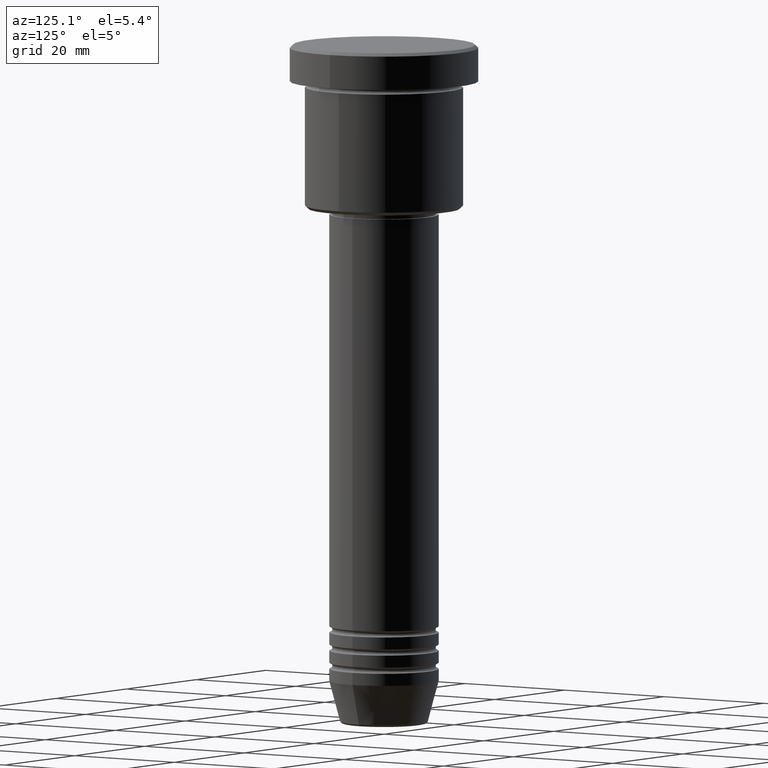
[diagram: clean part render]
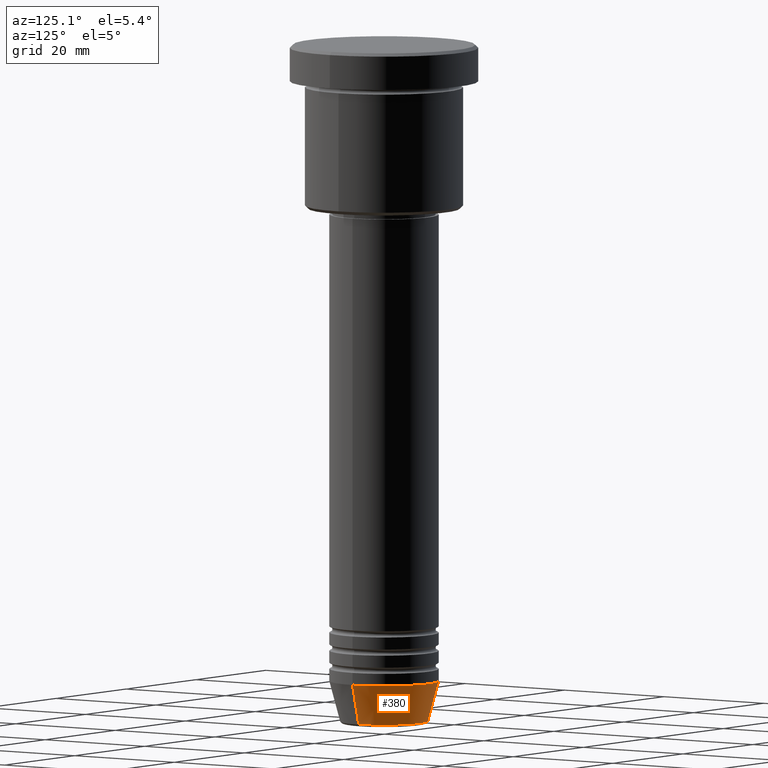
[diagram: same view with one face highlighted and labeled with its STEP entity id]
A machine part, auxiliary view. The second image highlights one B-rep face of the part: STEP entity #380.
In plain terms, the highlighted conical surface has half-angle 15 deg.
Its self-contained STEP definition (entity closure, byte-faithful):
#11 = CARTESIAN_POINT ( 'NONE',  ( -9.000000000000000000, 1.102182119232617714E-15, -105.0000000000000142 ) ) ;
#40 = ORIENTED_EDGE ( 'NONE', *, *, #653, .T. ) ;
#90 = CARTESIAN_POINT ( 'NONE',  ( -9.000000000000000000, 1.102182119232617714E-15, -105.0000000000000142 ) ) ;
#99 = EDGE_LOOP ( 'NONE', ( #40, #765, #812, #645 ) ) ;
#109 = DIRECTION ( 'NONE',  ( 1.000000000000000000, 0.000000000000000000, 0.000000000000000000 ) ) ;
#129 = EDGE_CURVE ( 'NONE', #326, #303, #915, .T. ) ;
#168 = DIRECTION ( 'NONE',  ( 0.2588190451025213501, 0.000000000000000000, 0.9659258262890680902 ) ) ;
#268 = CARTESIAN_POINT ( 'NONE',  ( 7.223655072137197486, 0.000000000000000000, -111.6294095225512564 ) ) ;
#275 = DIRECTION ( 'NONE',  ( -0.2588190451025213501, 3.169619151431772337E-17, 0.9659258262890680902 ) ) ;
#303 = VERTEX_POINT ( 'NONE', #11 ) ;
#325 = VECTOR ( 'NONE', #275, 1000.000000000000000 ) ;
#326 = VERTEX_POINT ( 'NONE', #1169 ) ;
#359 = DIRECTION ( 'NONE',  ( -0.000000000000000000, -0.000000000000000000, 1.000000000000000000 ) ) ;
#380 = ADVANCED_FACE ( 'NONE', ( #1130 ), #891, .T. ) ;
#406 = AXIS2_PLACEMENT_3D ( 'NONE', #609, #982, #787 ) ;
#420 = EDGE_CURVE ( 'NONE', #842, #303, #971, .T. ) ;
#423 = LINE ( 'NONE', #984, #874 ) ;
#472 = CIRCLE ( 'NONE', #972, 7.223655072137197486 ) ;
#609 = CARTESIAN_POINT ( 'NONE',  ( 0.000000000000000000, 0.000000000000000000, -105.0000000000000142 ) ) ;
#645 = ORIENTED_EDGE ( 'NONE', *, *, #803, .F. ) ;
#652 = DIRECTION ( 'NONE',  ( 1.000000000000000000, 0.000000000000000000, 0.000000000000000000 ) ) ;
#653 = EDGE_CURVE ( 'NONE', #1041, #326, #472, .T. ) ;
#655 = DIRECTION ( 'NONE',  ( -0.000000000000000000, -0.000000000000000000, 1.000000000000000000 ) ) ;
#661 = CARTESIAN_POINT ( 'NONE',  ( 0.000000000000000000, 0.000000000000000000, -111.6294095225512564 ) ) ;
#738 = CARTESIAN_POINT ( 'NONE',  ( 9.000000000000000000, 0.000000000000000000, -105.0000000000000142 ) ) ;
#765 = ORIENTED_EDGE ( 'NONE', *, *, #129, .T. ) ;
#771 = CARTESIAN_POINT ( 'NONE',  ( 0.000000000000000000, 0.000000000000000000, -105.0000000000000142 ) ) ;
#787 = DIRECTION ( 'NONE',  ( 1.000000000000000000, 0.000000000000000000, 0.000000000000000000 ) ) ;
#803 = EDGE_CURVE ( 'NONE', #1041, #842, #423, .T. ) ;
#812 = ORIENTED_EDGE ( 'NONE', *, *, #420, .F. ) ;
#842 = VERTEX_POINT ( 'NONE', #738 ) ;
#874 = VECTOR ( 'NONE', #168, 1000.000000000000000 ) ;
#891 = CONICAL_SURFACE ( 'NONE', #1155, 9.000000000000000000, 0.2617993877991500740 ) ;
#915 = LINE ( 'NONE', #90, #325 ) ;
#971 = CIRCLE ( 'NONE', #406, 9.000000000000000000 ) ;
#972 = AXIS2_PLACEMENT_3D ( 'NONE', #661, #655, #109 ) ;
#982 = DIRECTION ( 'NONE',  ( -0.000000000000000000, -0.000000000000000000, 1.000000000000000000 ) ) ;
#984 = CARTESIAN_POINT ( 'NONE',  ( 9.000000000000000000, 0.000000000000000000, -105.0000000000000142 ) ) ;
#1041 = VERTEX_POINT ( 'NONE', #268 ) ;
#1130 = FACE_OUTER_BOUND ( 'NONE', #99, .T. ) ;
#1155 = AXIS2_PLACEMENT_3D ( 'NONE', #771, #359, #652 ) ;
#1169 = CARTESIAN_POINT ( 'NONE',  ( -7.223655072137198374, 9.934123627281771026E-16, -111.6294095225512564 ) ) ;